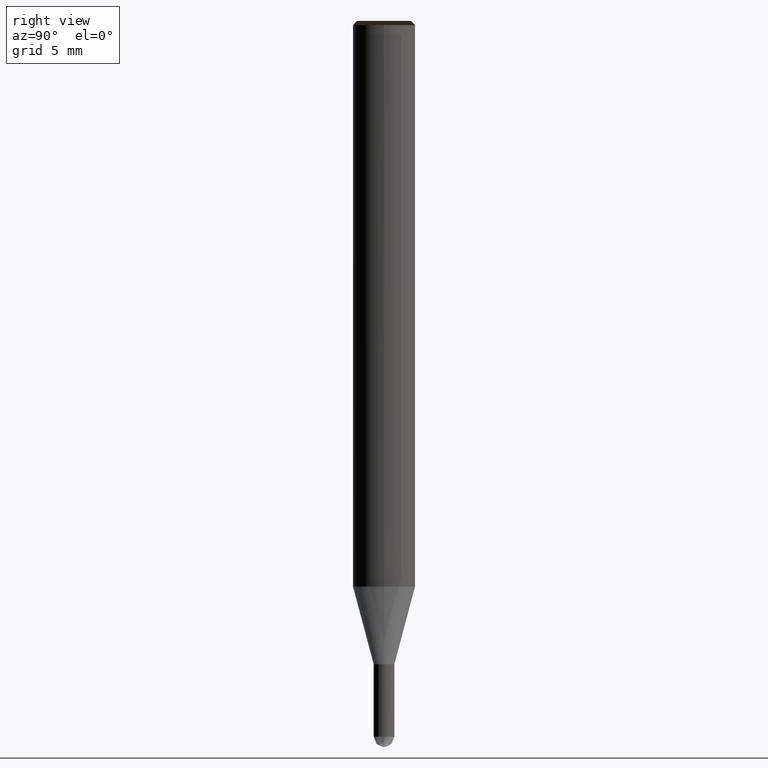
[diagram: clean part render]
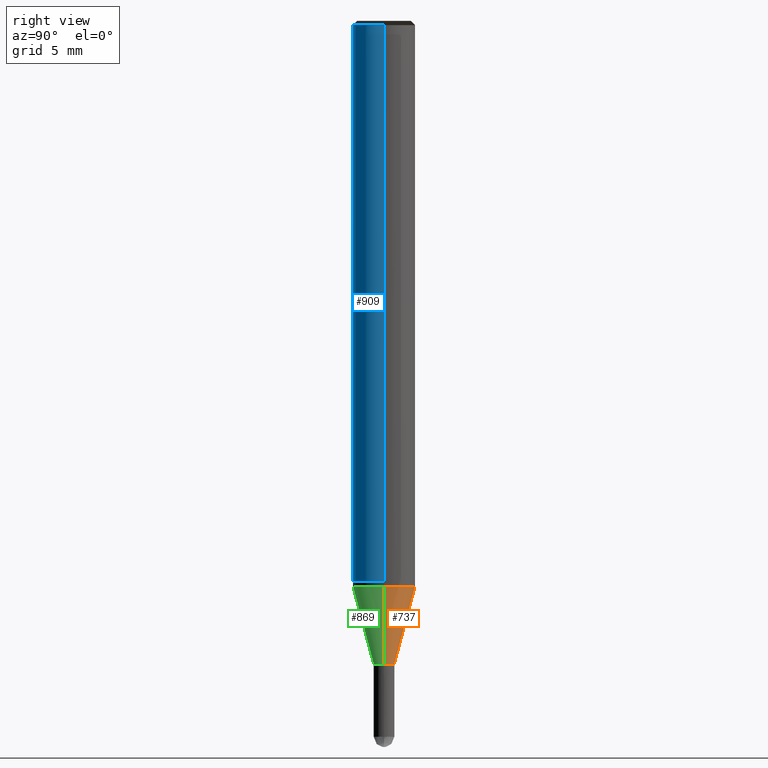
[diagram: same view with three faces highlighted in distinct colors, each labeled with its STEP entity id]
A machine part, right view with three faces highlighted in distinct colors.
Their STEP definitions:

[orange] entity #737 — the highlighted face is a freeform B-spline surface patch.
#526=CARTESIAN_POINT('',(0.5,0.0,-4.0));
#527=CARTESIAN_POINT('',(0.5,0.5,-4.0));
#528=CARTESIAN_POINT('',(0.0,0.5,-4.0));
#529=CARTESIAN_POINT('',(-0.5,0.5,-4.0));
#530=CARTESIAN_POINT('',(-0.5,0.0,-4.0));
#531=CARTESIAN_POINT('',(1.5,0.0,-0.267949192431));
#532=CARTESIAN_POINT('',(1.5,1.5,-0.267949192431));
#533=CARTESIAN_POINT('',(0.0,1.5,-0.267949192431));
#534=CARTESIAN_POINT('',(-1.5,1.5,-0.267949192431));
#535=CARTESIAN_POINT('',(-1.5,0.0,-0.267949192431));
#718=(
BOUNDED_SURFACE()
B_SPLINE_SURFACE(1,2,(
(#526,#527,#528,#529,#530),
(#531,#532,#533,#534,#535)
), .UNSPECIFIED.,.F.,.F.,.F.)
B_SPLINE_SURFACE_WITH_KNOTS((2,2),(3,2,3),(
0.0,1.0),(
0.0,0.5,1.0), .UNSPECIFIED.)
GEOMETRIC_REPRESENTATION_ITEM()
RATIONAL_B_SPLINE_SURFACE(((1.0,0.707106781187,1.0,0.707106781187,1.0),
(1.0,0.707106781187,1.0,0.707106781187,1.0)
))
REPRESENTATION_ITEM('')
SURFACE()
);
#719=(
BOUNDED_CURVE()
B_SPLINE_CURVE(2,(#530,#529,#528,#527,#526),.UNSPECIFIED.,.F.,.F.)
B_SPLINE_CURVE_WITH_KNOTS((3,2,3),
(0.0,0.5,1.0),.UNSPECIFIED.)
CURVE()
GEOMETRIC_REPRESENTATION_ITEM()
RATIONAL_B_SPLINE_CURVE((1.0,0.707106781187,1.0,0.707106781187,1.0))
REPRESENTATION_ITEM('')
);
#720=(
BOUNDED_CURVE()
B_SPLINE_CURVE(1,(#526,#531),.UNSPECIFIED.,.F.,.F.)
B_SPLINE_CURVE_WITH_KNOTS((2,2),
(0.0,1.0),.UNSPECIFIED.)
CURVE()
GEOMETRIC_REPRESENTATION_ITEM()
RATIONAL_B_SPLINE_CURVE((1.0,1.0))
REPRESENTATION_ITEM('')
);
#721=(
BOUNDED_CURVE()
B_SPLINE_CURVE(2,(#531,#532,#533,#534,#535),.UNSPECIFIED.,.F.,.F.)
B_SPLINE_CURVE_WITH_KNOTS((3,2,3),
(0.0,0.5,1.0),.UNSPECIFIED.)
CURVE()
GEOMETRIC_REPRESENTATION_ITEM()
RATIONAL_B_SPLINE_CURVE((1.0,0.707106781187,1.0,0.707106781187,1.0))
REPRESENTATION_ITEM('')
);
#722=(
BOUNDED_CURVE()
B_SPLINE_CURVE(1,(#535,#530),.UNSPECIFIED.,.F.,.F.)
B_SPLINE_CURVE_WITH_KNOTS((2,2),
(0.0,1.0),.UNSPECIFIED.)
CURVE()
GEOMETRIC_REPRESENTATION_ITEM()
RATIONAL_B_SPLINE_CURVE((1.0,1.0))
REPRESENTATION_ITEM('')
);
#723=VERTEX_POINT('',#526);
#724=VERTEX_POINT('',#530);
#725=VERTEX_POINT('',#531);
#726=VERTEX_POINT('',#535);
#727=EDGE_CURVE('',#724,#723,#719,.T.);
#728=EDGE_CURVE('',#723,#725,#720,.T.);
#729=EDGE_CURVE('',#725,#726,#721,.T.);
#730=EDGE_CURVE('',#726,#724,#722,.T.);
#731=ORIENTED_EDGE('',*,*,#727,.T.);
#732=ORIENTED_EDGE('',*,*,#728,.T.);
#733=ORIENTED_EDGE('',*,*,#729,.T.);
#734=ORIENTED_EDGE('',*,*,#730,.T.);
#735=EDGE_LOOP('',(#731,#732,#733,#734));
#736=FACE_OUTER_BOUND('',#735,.T.);
#737=ADVANCED_FACE('',(#736),#718,.T.);

[blue] entity #909 — the highlighted face is a freeform B-spline surface patch.
#536=CARTESIAN_POINT('',(1.5,0.0,0.0));
#540=CARTESIAN_POINT('',(-1.5,0.0,0.0));
#541=CARTESIAN_POINT('',(1.5,0.0,26.8));
#545=CARTESIAN_POINT('',(-1.5,0.0,26.8));
#558=CARTESIAN_POINT('',(-1.5,-1.5,0.0));
#559=CARTESIAN_POINT('',(0.0,-1.5,0.0));
#560=CARTESIAN_POINT('',(1.5,-1.5,0.0));
#561=CARTESIAN_POINT('',(-1.5,-1.5,26.8));
#562=CARTESIAN_POINT('',(0.0,-1.5,26.8));
#563=CARTESIAN_POINT('',(1.5,-1.5,26.8));
#890=(
BOUNDED_SURFACE()
B_SPLINE_SURFACE(1,2,(
(#540,#558,#559,#560,#536),
(#545,#561,#562,#563,#541)
), .UNSPECIFIED.,.F.,.F.,.F.)
B_SPLINE_SURFACE_WITH_KNOTS((2,2),(3,2,3),(
0.0,1.0),(
0.0,0.5,1.0), .UNSPECIFIED.)
GEOMETRIC_REPRESENTATION_ITEM()
RATIONAL_B_SPLINE_SURFACE(((1.0,0.707106781187,1.0,0.707106781187,1.0),
(1.0,0.707106781187,1.0,0.707106781187,1.0)
))
REPRESENTATION_ITEM('')
SURFACE()
);
#891=(
BOUNDED_CURVE()
B_SPLINE_CURVE(2,(#536,#560,#559,#558,#540),.UNSPECIFIED.,.F.,.F.)
B_SPLINE_CURVE_WITH_KNOTS((3,2,3),
(0.0,0.5,1.0),.UNSPECIFIED.)
CURVE()
GEOMETRIC_REPRESENTATION_ITEM()
RATIONAL_B_SPLINE_CURVE((1.0,0.707106781187,1.0,0.707106781187,1.0))
REPRESENTATION_ITEM('')
);
#892=(
BOUNDED_CURVE()
B_SPLINE_CURVE(1,(#540,#545),.UNSPECIFIED.,.F.,.F.)
B_SPLINE_CURVE_WITH_KNOTS((2,2),
(0.0,1.0),.UNSPECIFIED.)
CURVE()
GEOMETRIC_REPRESENTATION_ITEM()
RATIONAL_B_SPLINE_CURVE((1.0,1.0))
REPRESENTATION_ITEM('')
);
#893=(
BOUNDED_CURVE()
B_SPLINE_CURVE(2,(#545,#561,#562,#563,#541),.UNSPECIFIED.,.F.,.F.)
B_SPLINE_CURVE_WITH_KNOTS((3,2,3),
(0.0,0.5,1.0),.UNSPECIFIED.)
CURVE()
GEOMETRIC_REPRESENTATION_ITEM()
RATIONAL_B_SPLINE_CURVE((1.0,0.707106781187,1.0,0.707106781187,1.0))
REPRESENTATION_ITEM('')
);
#894=(
BOUNDED_CURVE()
B_SPLINE_CURVE(1,(#541,#536),.UNSPECIFIED.,.F.,.F.)
B_SPLINE_CURVE_WITH_KNOTS((2,2),
(0.0,1.0),.UNSPECIFIED.)
CURVE()
GEOMETRIC_REPRESENTATION_ITEM()
RATIONAL_B_SPLINE_CURVE((1.0,1.0))
REPRESENTATION_ITEM('')
);
#895=VERTEX_POINT('',#536);
#896=VERTEX_POINT('',#540);
#897=VERTEX_POINT('',#541);
#898=VERTEX_POINT('',#545);
#899=EDGE_CURVE('',#895,#896,#891,.T.);
#900=EDGE_CURVE('',#896,#898,#892,.T.);
#901=EDGE_CURVE('',#898,#897,#893,.T.);
#902=EDGE_CURVE('',#897,#895,#894,.T.);
#903=ORIENTED_EDGE('',*,*,#899,.T.);
#904=ORIENTED_EDGE('',*,*,#900,.T.);
#905=ORIENTED_EDGE('',*,*,#901,.T.);
#906=ORIENTED_EDGE('',*,*,#902,.T.);
#907=EDGE_LOOP('',(#903,#904,#905,#906));
#908=FACE_OUTER_BOUND('',#907,.T.);
#909=ADVANCED_FACE('',(#908),#890,.T.);

[green] entity #869 — the highlighted face is a freeform B-spline surface patch.
#526=CARTESIAN_POINT('',(0.5,0.0,-4.0));
#530=CARTESIAN_POINT('',(-0.5,0.0,-4.0));
#531=CARTESIAN_POINT('',(1.5,0.0,-0.267949192431));
#535=CARTESIAN_POINT('',(-1.5,0.0,-0.267949192431));
#552=CARTESIAN_POINT('',(-0.5,-0.5,-4.0));
#553=CARTESIAN_POINT('',(0.0,-0.5,-4.0));
#554=CARTESIAN_POINT('',(0.5,-0.5,-4.0));
#555=CARTESIAN_POINT('',(-1.5,-1.5,-0.267949192431));
#556=CARTESIAN_POINT('',(0.0,-1.5,-0.267949192431));
#557=CARTESIAN_POINT('',(1.5,-1.5,-0.267949192431));
#850=(
BOUNDED_SURFACE()
B_SPLINE_SURFACE(1,2,(
(#530,#552,#553,#554,#526),
(#535,#555,#556,#557,#531)
), .UNSPECIFIED.,.F.,.F.,.F.)
B_SPLINE_SURFACE_WITH_KNOTS((2,2),(3,2,3),(
0.0,1.0),(
0.0,0.5,1.0), .UNSPECIFIED.)
GEOMETRIC_REPRESENTATION_ITEM()
RATIONAL_B_SPLINE_SURFACE(((1.0,0.707106781187,1.0,0.707106781187,1.0),
(1.0,0.707106781187,1.0,0.707106781187,1.0)
))
REPRESENTATION_ITEM('')
SURFACE()
);
#851=(
BOUNDED_CURVE()
B_SPLINE_CURVE(2,(#526,#554,#553,#552,#530),.UNSPECIFIED.,.F.,.F.)
B_SPLINE_CURVE_WITH_KNOTS((3,2,3),
(0.0,0.5,1.0),.UNSPECIFIED.)
CURVE()
GEOMETRIC_REPRESENTATION_ITEM()
RATIONAL_B_SPLINE_CURVE((1.0,0.707106781187,1.0,0.707106781187,1.0))
REPRESENTATION_ITEM('')
);
#852=(
BOUNDED_CURVE()
B_SPLINE_CURVE(1,(#530,#535),.UNSPECIFIED.,.F.,.F.)
B_SPLINE_CURVE_WITH_KNOTS((2,2),
(0.0,1.0),.UNSPECIFIED.)
CURVE()
GEOMETRIC_REPRESENTATION_ITEM()
RATIONAL_B_SPLINE_CURVE((1.0,1.0))
REPRESENTATION_ITEM('')
);
#853=(
BOUNDED_CURVE()
B_SPLINE_CURVE(2,(#535,#555,#556,#557,#531),.UNSPECIFIED.,.F.,.F.)
B_SPLINE_CURVE_WITH_KNOTS((3,2,3),
(0.0,0.5,1.0),.UNSPECIFIED.)
CURVE()
GEOMETRIC_REPRESENTATION_ITEM()
RATIONAL_B_SPLINE_CURVE((1.0,0.707106781187,1.0,0.707106781187,1.0))
REPRESENTATION_ITEM('')
);
#854=(
BOUNDED_CURVE()
B_SPLINE_CURVE(1,(#531,#526),.UNSPECIFIED.,.F.,.F.)
B_SPLINE_CURVE_WITH_KNOTS((2,2),
(0.0,1.0),.UNSPECIFIED.)
CURVE()
GEOMETRIC_REPRESENTATION_ITEM()
RATIONAL_B_SPLINE_CURVE((1.0,1.0))
REPRESENTATION_ITEM('')
);
#855=VERTEX_POINT('',#526);
#856=VERTEX_POINT('',#530);
#857=VERTEX_POINT('',#531);
#858=VERTEX_POINT('',#535);
#859=EDGE_CURVE('',#855,#856,#851,.T.);
#860=EDGE_CURVE('',#856,#858,#852,.T.);
#861=EDGE_CURVE('',#858,#857,#853,.T.);
#862=EDGE_CURVE('',#857,#855,#854,.T.);
#863=ORIENTED_EDGE('',*,*,#859,.T.);
#864=ORIENTED_EDGE('',*,*,#860,.T.);
#865=ORIENTED_EDGE('',*,*,#861,.T.);
#866=ORIENTED_EDGE('',*,*,#862,.T.);
#867=EDGE_LOOP('',(#863,#864,#865,#866));
#868=FACE_OUTER_BOUND('',#867,.T.);
#869=ADVANCED_FACE('',(#868),#850,.T.);